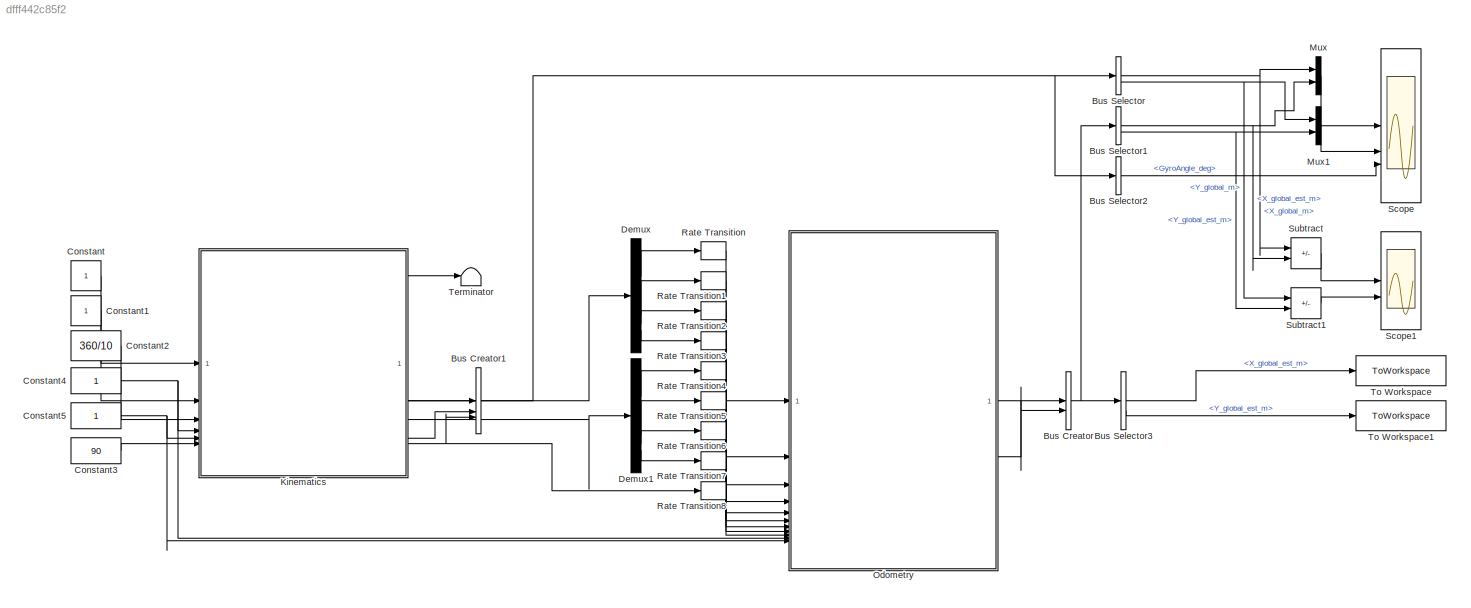
MODEL slx_dfff442c85f2
KIND model
CONFIG AbsTol = auto
CONFIG EnableMultiTasking = off
CONFIG FixedStep = auto
CONFIG MaxStep = 0.01
CONFIG MinStep = auto
CONFIG RelTol = 1e-3
CONFIG SampleTimeConstraint = Unconstrained
CONFIG SolverName = VariableStepAuto
CONFIG StartTime = 0.0
CONFIG StopTime = 10.0
BLOCK [BusCreator] Bus Creator
  DisplayOption = bar
  InheritFromInputs = on
  Inputs = 2
BLOCK [BusCreator] Bus Creator1
  DisplayOption = bar
  InheritFromInputs = on
  Inputs = 3
BLOCK [BusSelector] Bus Selector
  OutputSignals = X_global_m,Y_global_m
BLOCK [BusSelector] Bus Selector1
  OutputSignals = X_global_est_m,Y_global_est_m
BLOCK [BusSelector] Bus Selector2
  OutputSignals = GyroAngle_deg
BLOCK [BusSelector] Bus Selector3
  OutputSignals = X_global_est_m,Y_global_est_m
BLOCK [Constant] Constant
BLOCK [Constant] Constant1
BLOCK [Constant] Constant2
  Value = 360/10
BLOCK [Constant] Constant3
  Value = 90
BLOCK [Constant] Constant4
BLOCK [Constant] Constant5
BLOCK [Demux] Demux
BLOCK [Demux] Demux1
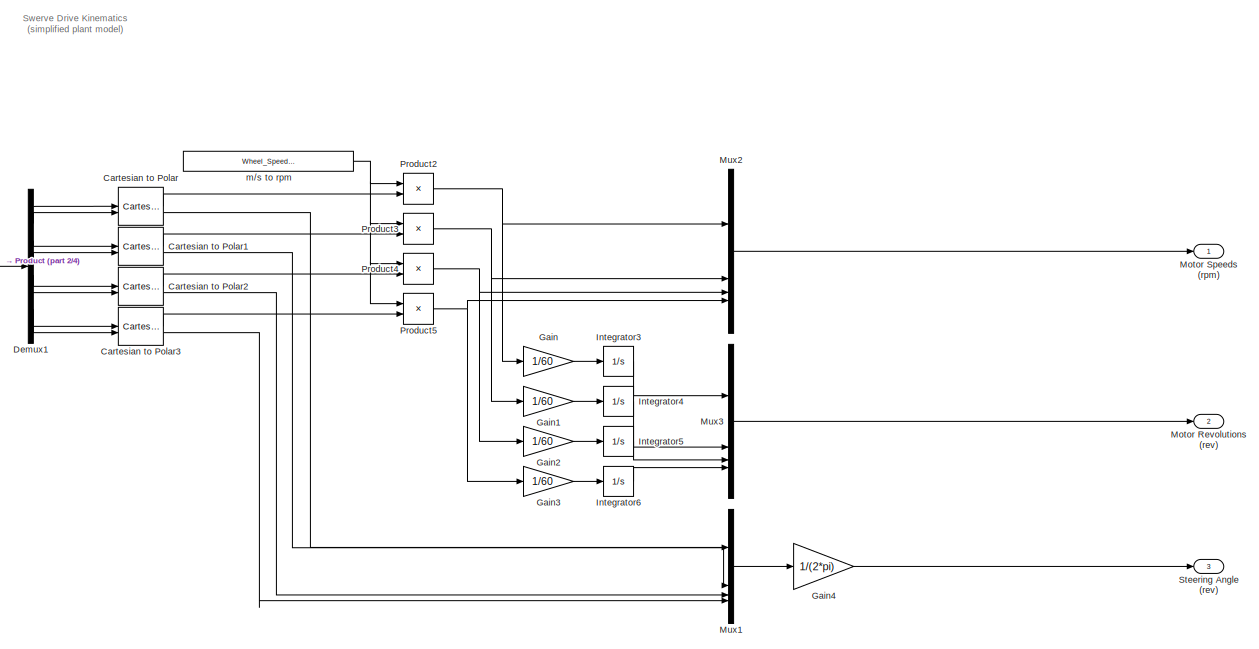
[diagram: Kinematics - part 1/4, top center region]
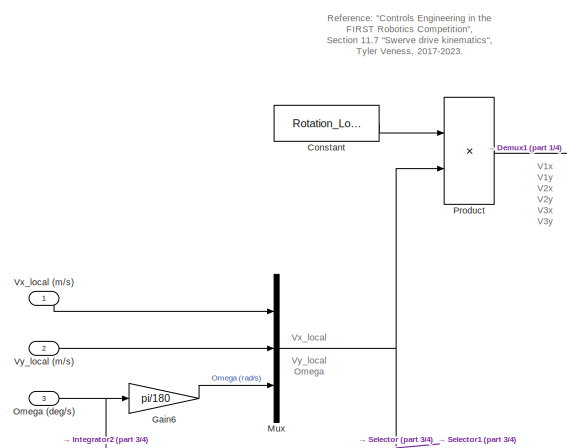
[diagram: Kinematics - part 2/4, top left region]
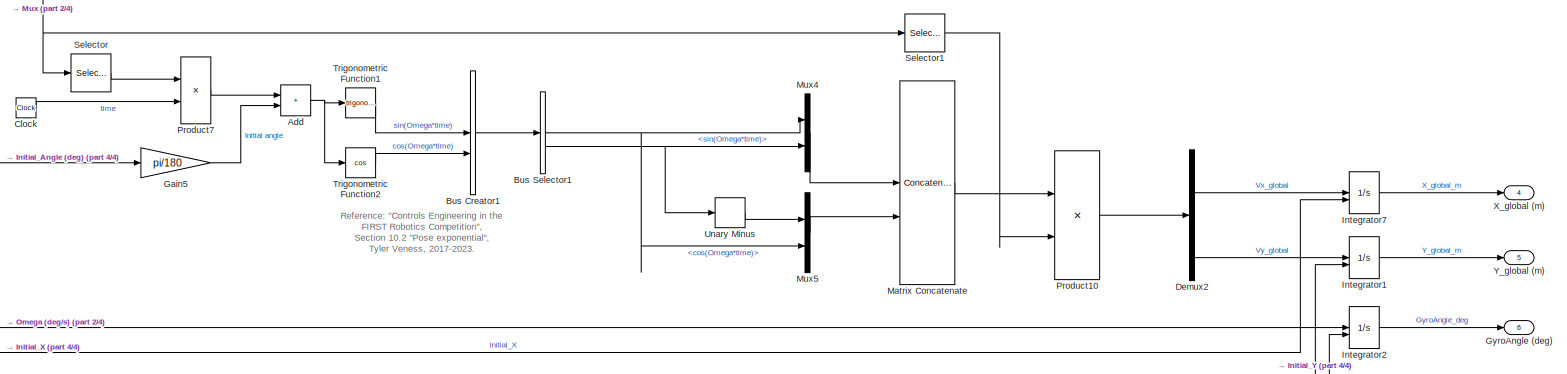
[diagram: Kinematics - part 3/4, full width, bottom band]
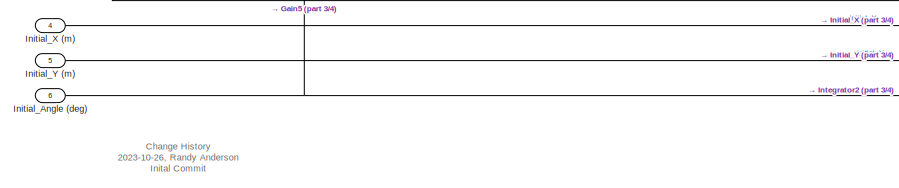
[diagram: Kinematics - part 4/4, bottom left region]
BLOCK [SubSystem] Kinematics
BLOCK [Sum] Kinematics/Add
  IconShape = rectangular
BLOCK [BusCreator] Kinematics/Bus Creator1
  DisplayOption = bar
  InheritFromInputs = on
  Inputs = 2
BLOCK [BusSelector] Kinematics/Bus Selector1
  OutputSignals = cos(Omega*time),sin(Omega*time)
BLOCK [Reference] Kinematics/Cartesian to Polar  REF=simulink_extras/Transformations/Cartesian to
Polar
  SourceBlock = simulink_extras/Transformations/Cartesian to\nPolar
  SourceType = Cart2Polar
BLOCK [Reference] Kinematics/Cartesian to Polar1  REF=simulink_extras/Transformations/Cartesian to
Polar
  SourceBlock = simulink_extras/Transformations/Cartesian to\nPolar
  SourceType = Cart2Polar
BLOCK [Reference] Kinematics/Cartesian to Polar2  REF=simulink_extras/Transformations/Cartesian to
Polar
  SourceBlock = simulink_extras/Transformations/Cartesian to\nPolar
  SourceType = Cart2Polar
BLOCK [Reference] Kinematics/Cartesian to Polar3  REF=simulink_extras/Transformations/Cartesian to
Polar
  SourceBlock = simulink_extras/Transformations/Cartesian to\nPolar
  SourceType = Cart2Polar
BLOCK [Clock] Kinematics/Clock
BLOCK [Constant] Kinematics/Constant
  Value = Rotation_Local
BLOCK [Demux] Kinematics/Demux1
  Outputs = 8
BLOCK [Demux] Kinematics/Demux2
  Outputs = 2
BLOCK [Gain] Kinematics/Gain
  Gain = 1/60
BLOCK [Gain] Kinematics/Gain1
  Gain = 1/60
BLOCK [Gain] Kinematics/Gain2
  Gain = 1/60
BLOCK [Gain] Kinematics/Gain3
  Gain = 1/60
BLOCK [Gain] Kinematics/Gain4
  Gain = 1/(2*pi)
BLOCK [Gain] Kinematics/Gain5
  Gain = pi/180
BLOCK [Gain] Kinematics/Gain6
  Gain = pi/180
BLOCK [Outport] Kinematics/GyroAngle (deg)
  Port = 6
BLOCK [Inport] Kinematics/Initial_Angle (deg)
  Port = 6
BLOCK [Inport] Kinematics/Initial_X (m)
  Port = 4
BLOCK [Inport] Kinematics/Initial_Y (m)
  Port = 5
BLOCK [Integrator] Kinematics/Integrator1
  InitialConditionSource = external
BLOCK [Integrator] Kinematics/Integrator2
  InitialConditionSource = external
BLOCK [Integrator] Kinematics/Integrator3
BLOCK [Integrator] Kinematics/Integrator4
BLOCK [Integrator] Kinematics/Integrator5
BLOCK [Integrator] Kinematics/Integrator6
BLOCK [Integrator] Kinematics/Integrator7
  InitialConditionSource = external
BLOCK [Concatenate] Kinematics/Matrix Concatenate
  ConcatenateDimension = 2
  Mode = Multidimensional array
BLOCK [Outport] Kinematics/Motor Revolutions (rev)
  Port = 2
BLOCK [Outport] Kinematics/Motor Speeds (rpm)
BLOCK [Mux] Kinematics/Mux
  DisplayOption = bar
  Inputs = 3
BLOCK [Mux] Kinematics/Mux1
  DisplayOption = bar
BLOCK [Mux] Kinematics/Mux2
  DisplayOption = bar
BLOCK [Mux] Kinematics/Mux3
  DisplayOption = bar
BLOCK [Mux] Kinematics/Mux4
  DisplayOption = bar
  Inputs = 2
BLOCK [Mux] Kinematics/Mux5
  DisplayOption = bar
  Inputs = 2
BLOCK [Inport] Kinematics/Omega (deg//s)
  Port = 3
BLOCK [Product] Kinematics/Product
  Multiplication = Matrix(*)
BLOCK [Product] Kinematics/Product10
  Multiplication = Matrix(*)
BLOCK [Product] Kinematics/Product2
BLOCK [Product] Kinematics/Product3
BLOCK [Product] Kinematics/Product4
BLOCK [Product] Kinematics/Product5
BLOCK [Product] Kinematics/Product7
BLOCK [Selector] Kinematics/Selector
  IndexOptions = Index vector (dialog)
  Indices = 3
  InputPortWidth = 3
  OutputSizes = 1
BLOCK [Selector] Kinematics/Selector1
  IndexOptions = Index vector (dialog)
  Indices = [1 2]
  InputPortWidth = 3
  OutputSizes = 1
BLOCK [Outport] Kinematics/Steering Angle (rev)
  Port = 3
BLOCK [Trigonometry] Kinematics/Trigonometric Function1
BLOCK [Trigonometry] Kinematics/Trigonometric Function2
  Operator = cos
BLOCK [UnaryMinus] Kinematics/Unary Minus
BLOCK [Inport] Kinematics/Vx_local (m//s)
BLOCK [Inport] Kinematics/Vy_local (m//s)
  Port = 2
BLOCK [Outport] Kinematics/X_global (m)
  Port = 4
BLOCK [Outport] Kinematics/Y_global (m)
  Port = 5
BLOCK [Constant] Kinematics/m//s to rpm
  Value = Wheel_Speed_to_Motor_Speed
BLOCK [Mux] Mux
  DisplayOption = bar
  Inputs = 2
BLOCK [Mux] Mux1
  DisplayOption = bar
  Inputs = 2
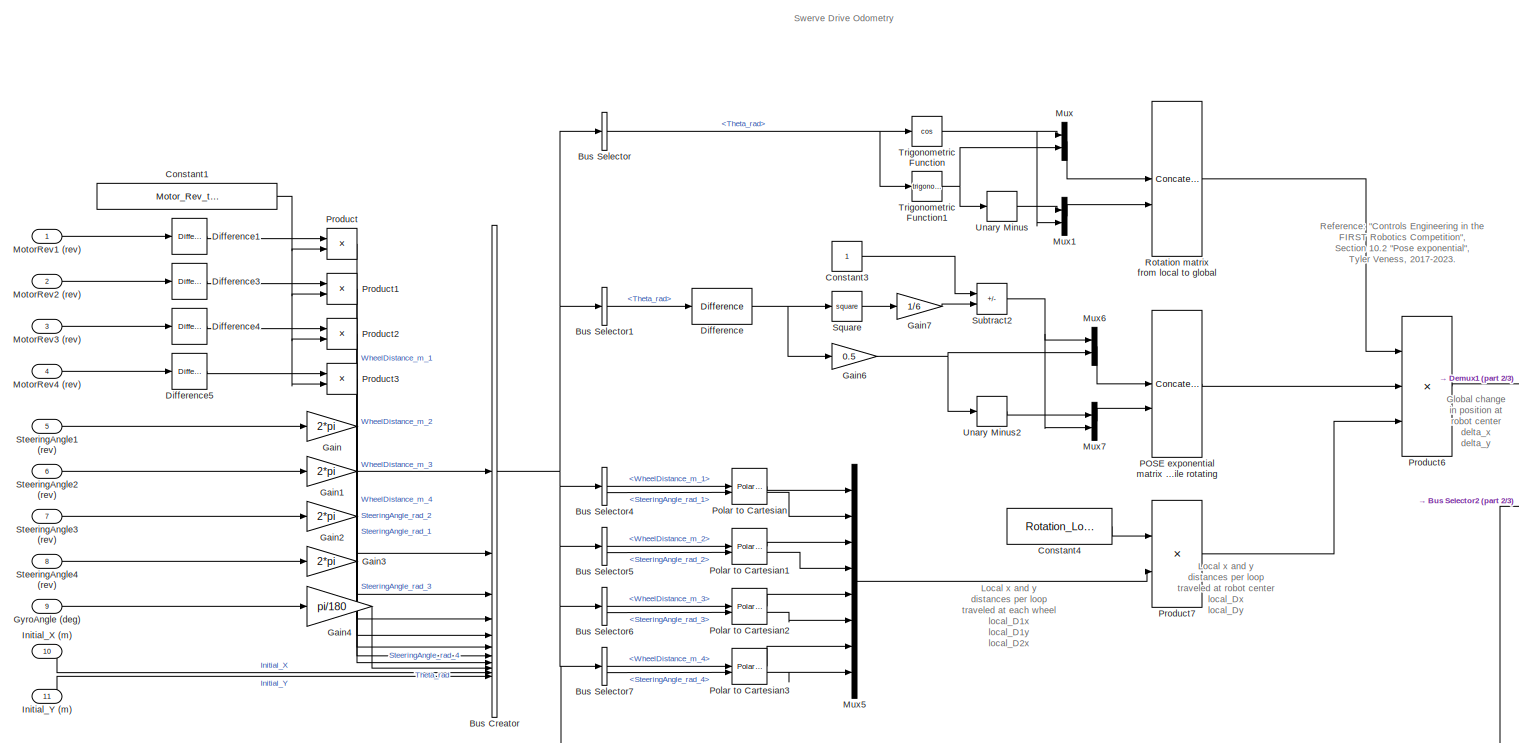
[diagram: Odometry - part 1/3, most of the canvas]
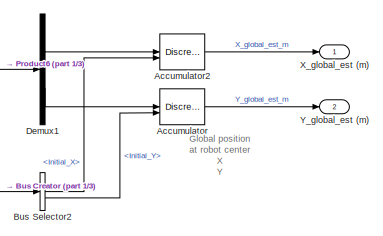
[diagram: Odometry - part 2/3, middle right region]
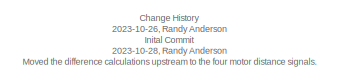
[diagram: Odometry - part 3/3, bottom left region]
BLOCK [SubSystem] Odometry
BLOCK [DiscreteIntegrator] Odometry/Accumulator
  ICPrevOutput = DiscIntNeverNeededParam
  ICPrevScaledInput = DiscIntNeverNeededParam
  InitialConditionSetting = Auto
  InitialConditionSource = external
  IntegratorMethod = Accumulation: Forward Euler
  SampleTime = -1
BLOCK [DiscreteIntegrator] Odometry/Accumulator2
  ICPrevOutput = DiscIntNeverNeededParam
  ICPrevScaledInput = DiscIntNeverNeededParam
  InitialConditionSetting = Auto
  InitialConditionSource = external
  IntegratorMethod = Accumulation: Forward Euler
  SampleTime = -1
BLOCK [BusCreator] Odometry/Bus Creator
  DisplayOption = bar
  InheritFromInputs = on
  Inputs = 11
BLOCK [BusSelector] Odometry/Bus Selector
  OutputSignals = Theta_rad
BLOCK [BusSelector] Odometry/Bus Selector1
  OutputSignals = Theta_rad
BLOCK [BusSelector] Odometry/Bus Selector2
  OutputSignals = Initial_X,Initial_Y
BLOCK [BusSelector] Odometry/Bus Selector4
  OutputSignals = WheelDistance_m_1,SteeringAngle_rad_1
BLOCK [BusSelector] Odometry/Bus Selector5
  OutputSignals = WheelDistance_m_2,SteeringAngle_rad_2
BLOCK [BusSelector] Odometry/Bus Selector6
  OutputSignals = WheelDistance_m_3,SteeringAngle_rad_3
BLOCK [BusSelector] Odometry/Bus Selector7
  OutputSignals = WheelDistance_m_4,SteeringAngle_rad_4
BLOCK [Constant] Odometry/Constant1
  Value = Motor_Rev_to_Wheel_Distance
BLOCK [Constant] Odometry/Constant3
BLOCK [Constant] Odometry/Constant4
  Value = Rotation_Local_Inv
BLOCK [Demux] Odometry/Demux1
  Outputs = 2
BLOCK [Reference] Odometry/Difference  REF=simulink/Discrete/Difference
  SourceBlock = simulink/Discrete/Difference
  SourceType = Difference
BLOCK [Reference] Odometry/Difference1  REF=simulink/Discrete/Difference
  SourceBlock = simulink/Discrete/Difference
  SourceType = Difference
BLOCK [Reference] Odometry/Difference3  REF=simulink/Discrete/Difference
  SourceBlock = simulink/Discrete/Difference
  SourceType = Difference
BLOCK [Reference] Odometry/Difference4  REF=simulink/Discrete/Difference
  SourceBlock = simulink/Discrete/Difference
  SourceType = Difference
BLOCK [Reference] Odometry/Difference5  REF=simulink/Discrete/Difference
  SourceBlock = simulink/Discrete/Difference
  SourceType = Difference
BLOCK [Gain] Odometry/Gain
  Gain = 2*pi
BLOCK [Gain] Odometry/Gain1
  Gain = 2*pi
BLOCK [Gain] Odometry/Gain2
  Gain = 2*pi
BLOCK [Gain] Odometry/Gain3
  Gain = 2*pi
BLOCK [Gain] Odometry/Gain4
  Gain = pi/180
BLOCK [Gain] Odometry/Gain6
  Gain = 0.5
BLOCK [Gain] Odometry/Gain7
  Gain = 1/6
BLOCK [Inport] Odometry/GyroAngle (deg)
  Port = 9
BLOCK [Inport] Odometry/Initial_X (m)
  Port = 10
BLOCK [Inport] Odometry/Initial_Y (m)
  Port = 11
BLOCK [Inport] Odometry/MotorRev1 (rev)
BLOCK [Inport] Odometry/MotorRev2 (rev)
  Port = 2
BLOCK [Inport] Odometry/MotorRev3 (rev)
  Port = 3
BLOCK [Inport] Odometry/MotorRev4 (rev)
  Port = 4
BLOCK [Mux] Odometry/Mux
  DisplayOption = bar
  Inputs = 2
BLOCK [Mux] Odometry/Mux1
  DisplayOption = bar
  Inputs = 2
BLOCK [Mux] Odometry/Mux5
  DisplayOption = bar
  Inputs = 8
BLOCK [Mux] Odometry/Mux6
  DisplayOption = bar
  Inputs = 2
BLOCK [Mux] Odometry/Mux7
  DisplayOption = bar
  Inputs = 2
BLOCK [Concatenate] Odometry/POSE exponential matrix for improved accuracy while rotating
  ConcatenateDimension = 2
  Mode = Multidimensional array
BLOCK [Reference] Odometry/Polar to Cartesian  REF=simulink_extras/Transformations/Polar to
Cartesian
  SourceBlock = simulink_extras/Transformations/Polar to\nCartesian
  SourceType = Polar2Cart
BLOCK [Reference] Odometry/Polar to Cartesian1  REF=simulink_extras/Transformations/Polar to
Cartesian
  SourceBlock = simulink_extras/Transformations/Polar to\nCartesian
  SourceType = Polar2Cart
BLOCK [Reference] Odometry/Polar to Cartesian2  REF=simulink_extras/Transformations/Polar to
Cartesian
  SourceBlock = simulink_extras/Transformations/Polar to\nCartesian
  SourceType = Polar2Cart
BLOCK [Reference] Odometry/Polar to Cartesian3  REF=simulink_extras/Transformations/Polar to
Cartesian
  SourceBlock = simulink_extras/Transformations/Polar to\nCartesian
  SourceType = Polar2Cart
BLOCK [Product] Odometry/Product
BLOCK [Product] Odometry/Product1
BLOCK [Product] Odometry/Product2
BLOCK [Product] Odometry/Product3
BLOCK [Product] Odometry/Product6
  Inputs = 3
  Multiplication = Matrix(*)
BLOCK [Product] Odometry/Product7
  Multiplication = Matrix(*)
BLOCK [Concatenate] Odometry/Rotation matrix from local to global
  ConcatenateDimension = 2
  Mode = Multidimensional array
BLOCK [Math] Odometry/Square
  Operator = square
BLOCK [Inport] Odometry/SteeringAngle1 (rev)
  Port = 5
BLOCK [Inport] Odometry/SteeringAngle2 (rev)
  Port = 6
BLOCK [Inport] Odometry/SteeringAngle3 (rev)
  Port = 7
BLOCK [Inport] Odometry/SteeringAngle4 (rev)
  Port = 8
BLOCK [Sum] Odometry/Subtract2
  IconShape = rectangular
  Inputs = +-
BLOCK [Trigonometry] Odometry/Trigonometric Function
  Operator = cos
BLOCK [Trigonometry] Odometry/Trigonometric Function1
BLOCK [UnaryMinus] Odometry/Unary Minus
BLOCK [UnaryMinus] Odometry/Unary Minus2
BLOCK [Outport] Odometry/X_global_est (m)
BLOCK [Outport] Odometry/Y_global_est (m)
  Port = 2
BLOCK [RateTransition] Rate Transition
  OutPortSampleTime = t_sample
BLOCK [RateTransition] Rate Transition1
  OutPortSampleTime = t_sample
BLOCK [RateTransition] Rate Transition2
  OutPortSampleTime = t_sample
BLOCK [RateTransition] Rate Transition3
  OutPortSampleTime = t_sample
BLOCK [RateTransition] Rate Transition4
  OutPortSampleTime = t_sample
BLOCK [RateTransition] Rate Transition5
  OutPortSampleTime = t_sample
BLOCK [RateTransition] Rate Transition6
  OutPortSampleTime = t_sample
BLOCK [RateTransition] Rate Transition7
  OutPortSampleTime = t_sample
BLOCK [RateTransition] Rate Transition8
  OutPortSampleTime = t_sample
BLOCK [Scope] Scope
  Floating = off
  NumInputPorts = 3
  ScopeSpecificationString = Simulink.scopes.TimeScopeBlockCfg('CurrentConfiguration', extmgr.ConfigurationSet(extmgr.Configuration('Core','General UI',true),extmgr.Configuration('Core','Source UI',true),extmgr.Configuration('Sources','WiredSimulink',true),extmgr.Configuration('Visuals','Time Domain',true,'SerializedDisplays',{struct('MinYLimReal','-3.40755','MaxYLimReal','2.24453','YLabelReal','','MinYLimMag','0.00000','MaxY...<+2731ch>
BLOCK [Scope] Scope1
  Floating = off
  NumInputPorts = 2
  ScopeSpecificationString = Simulink.scopes.TimeScopeBlockCfg('CurrentConfiguration', extmgr.ConfigurationSet(extmgr.Configuration('Core','General UI',true),extmgr.Configuration('Core','Source UI',true),extmgr.Configuration('Sources','WiredSimulink',true,'DataLoggingVariableName','ScopeData1'),extmgr.Configuration('Visuals','Time Domain',true,'SerializedDisplays',{struct('MinYLimReal','-0.03855','MaxYLimReal','0.00428','YLab...<+2012ch>
BLOCK [Sum] Subtract
  IconShape = rectangular
  Inputs = +-
BLOCK [Sum] Subtract1
  IconShape = rectangular
  Inputs = +-
BLOCK [Terminator] Terminator
BLOCK [ToWorkspace] To Workspace
  FixptAsFi = on
  MaxDataPoints = inf
  SampleTime = -1
  VariableName = X
BLOCK [ToWorkspace] To Workspace1
  FixptAsFi = on
  MaxDataPoints = inf
  SampleTime = -1
  VariableName = Y
ANNOTATION Kinematics: Swerve Drive Kinematics (simplified plant model)
ANNOTATION Kinematics: Change History 2023-10-26, Randy Anderson Inital Commit
ANNOTATION Kinematics: Reference: "Controls Engineering in the FIRST Robotics Competition", Section 10.2 "Pose exponential", Tyler Veness, 2017-2023.
ANNOTATION Kinematics: Reference: "Controls Engineering in the FIRST Robotics Competition", Section 11.7 "Swerve drive kinematics", Tyler Veness, 2017-2023.
ANNOTATION Kinematics: V1x V1y V2x V2y V3x V3y V4x V4y
ANNOTATION Kinematics: Vx_local Vy_local Omega
ANNOTATION Odometry: Swerve Drive Odometry
ANNOTATION Odometry: Change History 2023-10-26, Randy Anderson Inital Commit 2023-10-28, Randy Anderson Moved the difference calculations upstream to the four motor distance signals.
ANNOTATION Odometry: Global change in position at robot center delta_x delta_y
ANNOTATION Odometry: Global position at robot center X Y
ANNOTATION Odometry: Local x and y distances per loop traveled at each wheel local_D1x local_D1y local_D2x local_D2y local_D3x local_D3y local_D4x local_D4y
ANNOTATION Odometry: Local x and y distances per loop traveled at robot center local_Dx local_Dy
ANNOTATION Odometry: Reference: "Controls Engineering in the FIRST Robotics Competition", Section 10.2 "Pose exponential", Tyler Veness, 2017-2023.
NET Bus Creator1:1 -> Bus Selector2:1, Bus Selector:1
NET Bus Creator:1 -> Bus Selector1:1, Bus Selector3:1
NET Bus Selector1:1 -> Mux:2, Subtract:2
NET Bus Selector1:2 -> Mux1:2, Subtract1:2
LINE Bus Selector2:1 -> Scope:3
LINE Bus Selector3:1 -> To Workspace:1
LINE Bus Selector3:2 -> To Workspace1:1
NET Bus Selector:1 -> Mux:1, Subtract:1
NET Bus Selector:2 -> Mux1:1, Subtract1:1
LINE Constant1:1 -> Kinematics:2
LINE Constant2:1 -> Kinematics:3
LINE Constant3:1 -> Kinematics:6
NET Constant4:1 -> Kinematics:4, Odometry:10
NET Constant5:1 -> Kinematics:5, Odometry:11
LINE Constant:1 -> Kinematics:1
LINE Demux1:1 -> Rate Transition4:1
LINE Demux1:2 -> Rate Transition5:1
LINE Demux1:3 -> Rate Transition6:1
LINE Demux1:4 -> Rate Transition7:1
LINE Demux:1 -> Rate Transition:1
LINE Demux:2 -> Rate Transition1:1
LINE Demux:3 -> Rate Transition2:1
LINE Demux:4 -> Rate Transition3:1
NET Kinematics/Add:1 -> Kinematics/Trigonometric Function1:1, Kinematics/Trigonometric Function2:1
LINE Kinematics/Bus Creator1:1 -> Kinematics/Bus Selector1:1
NET Kinematics/Bus Selector1:1 -> Kinematics/Mux4:1, Kinematics/Mux5:2
NET Kinematics/Bus Selector1:2 -> Kinematics/Mux4:2, Kinematics/Unary Minus:1
LINE Kinematics/Cartesian to Polar1:1 -> Kinematics/Product3:2
LINE Kinematics/Cartesian to Polar1:2 -> Kinematics/Mux1:2
LINE Kinematics/Cartesian to Polar2:1 -> Kinematics/Product4:2
LINE Kinematics/Cartesian to Polar2:2 -> Kinematics/Mux1:3
LINE Kinematics/Cartesian to Polar3:1 -> Kinematics/Product5:2
LINE Kinematics/Cartesian to Polar3:2 -> Kinematics/Mux1:4
LINE Kinematics/Cartesian to Polar:1 -> Kinematics/Product2:2
LINE Kinematics/Cartesian to Polar:2 -> Kinematics/Mux1:1
LINE Kinematics/Clock:1 -> Kinematics/Product7:2
LINE Kinematics/Constant:1 -> Kinematics/Product:1
LINE Kinematics/Demux1:1 -> Kinematics/Cartesian to Polar:1
LINE Kinematics/Demux1:2 -> Kinematics/Cartesian to Polar:2
LINE Kinematics/Demux1:3 -> Kinematics/Cartesian to Polar1:1
LINE Kinematics/Demux1:4 -> Kinematics/Cartesian to Polar1:2
LINE Kinematics/Demux1:5 -> Kinematics/Cartesian to Polar2:1
LINE Kinematics/Demux1:6 -> Kinematics/Cartesian to Polar2:2
LINE Kinematics/Demux1:7 -> Kinematics/Cartesian to Polar3:1
LINE Kinematics/Demux1:8 -> Kinematics/Cartesian to Polar3:2
LINE Kinematics/Demux2:1 -> Kinematics/Integrator7:1
LINE Kinematics/Demux2:2 -> Kinematics/Integrator1:1
LINE Kinematics/Gain1:1 -> Kinematics/Integrator4:1
LINE Kinematics/Gain2:1 -> Kinematics/Integrator5:1
LINE Kinematics/Gain3:1 -> Kinematics/Integrator6:1
LINE Kinematics/Gain4:1 -> Kinematics/Steering Angle (rev):1
LINE Kinematics/Gain5:1 -> Kinematics/Add:2
LINE Kinematics/Gain6:1 -> Kinematics/Mux:3
LINE Kinematics/Gain:1 -> Kinematics/Integrator3:1
NET Kinematics/Initial_Angle (deg):1 -> Kinematics/Gain5:1, Kinematics/Integrator2:2
LINE Kinematics/Initial_X (m):1 -> Kinematics/Integrator7:2
LINE Kinematics/Initial_Y (m):1 -> Kinematics/Integrator1:2
LINE Kinematics/Integrator1:1 -> Kinematics/Y_global (m):1
LINE Kinematics/Integrator2:1 -> Kinematics/GyroAngle (deg):1
LINE Kinematics/Integrator3:1 -> Kinematics/Mux3:1
LINE Kinematics/Integrator4:1 -> Kinematics/Mux3:2
LINE Kinematics/Integrator5:1 -> Kinematics/Mux3:3
LINE Kinematics/Integrator6:1 -> Kinematics/Mux3:4
LINE Kinematics/Integrator7:1 -> Kinematics/X_global (m):1
LINE Kinematics/Matrix Concatenate:1 -> Kinematics/Product10:1
LINE Kinematics/Mux1:1 -> Kinematics/Gain4:1
LINE Kinematics/Mux2:1 -> Kinematics/Motor Speeds (rpm):1
LINE Kinematics/Mux3:1 -> Kinematics/Motor Revolutions (rev):1
LINE Kinematics/Mux4:1 -> Kinematics/Matrix Concatenate:1
LINE Kinematics/Mux5:1 -> Kinematics/Matrix Concatenate:2
NET Kinematics/Mux:1 -> Kinematics/Product:2, Kinematics/Selector1:1, Kinematics/Selector:1
NET Kinematics/Omega (deg//s):1 -> Kinematics/Gain6:1, Kinematics/Integrator2:1
LINE Kinematics/Product10:1 -> Kinematics/Demux2:1
NET Kinematics/Product2:1 -> Kinematics/Gain:1, Kinematics/Mux2:1
NET Kinematics/Product3:1 -> Kinematics/Gain1:1, Kinematics/Mux2:2
NET Kinematics/Product4:1 -> Kinematics/Gain2:1, Kinematics/Mux2:3
NET Kinematics/Product5:1 -> Kinematics/Gain3:1, Kinematics/Mux2:4
LINE Kinematics/Product7:1 -> Kinematics/Add:1
LINE Kinematics/Product:1 -> Kinematics/Demux1:1
LINE Kinematics/Selector1:1 -> Kinematics/Product10:2
LINE Kinematics/Selector:1 -> Kinematics/Product7:1
LINE Kinematics/Trigonometric Function1:1 -> Kinematics/Bus Creator1:1
LINE Kinematics/Trigonometric Function2:1 -> Kinematics/Bus Creator1:2
LINE Kinematics/Unary Minus:1 -> Kinematics/Mux5:1
LINE Kinematics/Vx_local (m//s):1 -> Kinematics/Mux:1
LINE Kinematics/Vy_local (m//s):1 -> Kinematics/Mux:2
NET Kinematics/m//s to rpm:1 -> Kinematics/Product2:1, Kinematics/Product3:1, Kinematics/Product4:1, Kinematics/Product5:1
LINE Kinematics:1 -> Terminator:1
LINE Kinematics:2 -> Demux:1
LINE Kinematics:3 -> Demux1:1
LINE Kinematics:4 -> Bus Creator1:1
LINE Kinematics:5 -> Bus Creator1:2
NET Kinematics:6 -> Bus Creator1:3, Rate Transition8:1
LINE Mux1:1 -> Scope:2
LINE Mux:1 -> Scope:1
LINE Odometry/Accumulator2:1 -> Odometry/X_global_est (m):1
LINE Odometry/Accumulator:1 -> Odometry/Y_global_est (m):1
NET Odometry/Bus Creator:1 -> Odometry/Bus Selector1:1, Odometry/Bus Selector2:1, Odometry/Bus Selector4:1, Odometry/Bus Selector5:1, Odometry/Bus Selector6:1, Odometry/Bus Selector7:1, Odometry/Bus Selector:1
LINE Odometry/Bus Selector1:1 -> Odometry/Difference:1
LINE Odometry/Bus Selector2:1 -> Odometry/Accumulator2:2
LINE Odometry/Bus Selector2:2 -> Odometry/Accumulator:2
LINE Odometry/Bus Selector4:1 -> Odometry/Polar to Cartesian:1
LINE Odometry/Bus Selector4:2 -> Odometry/Polar to Cartesian:2
LINE Odometry/Bus Selector5:1 -> Odometry/Polar to Cartesian1:1
LINE Odometry/Bus Selector5:2 -> Odometry/Polar to Cartesian1:2
LINE Odometry/Bus Selector6:1 -> Odometry/Polar to Cartesian2:1
LINE Odometry/Bus Selector6:2 -> Odometry/Polar to Cartesian2:2
LINE Odometry/Bus Selector7:1 -> Odometry/Polar to Cartesian3:1
LINE Odometry/Bus Selector7:2 -> Odometry/Polar to Cartesian3:2
NET Odometry/Bus Selector:1 -> Odometry/Trigonometric Function1:1, Odometry/Trigonometric Function:1
NET Odometry/Constant1:1 -> Odometry/Product1:2, Odometry/Product2:2, Odometry/Product3:2, Odometry/Product:2
LINE Odometry/Constant3:1 -> Odometry/Subtract2:1
LINE Odometry/Constant4:1 -> Odometry/Product7:1
LINE Odometry/Demux1:1 -> Odometry/Accumulator2:1
LINE Odometry/Demux1:2 -> Odometry/Accumulator:1
LINE Odometry/Difference1:1 -> Odometry/Product:1
LINE Odometry/Difference3:1 -> Odometry/Product1:1
LINE Odometry/Difference4:1 -> Odometry/Product2:1
LINE Odometry/Difference5:1 -> Odometry/Product3:1
NET Odometry/Difference:1 -> Odometry/Gain6:1, Odometry/Square:1
LINE Odometry/Gain1:1 -> Odometry/Bus Creator:6
LINE Odometry/Gain2:1 -> Odometry/Bus Creator:7
LINE Odometry/Gain3:1 -> Odometry/Bus Creator:8
LINE Odometry/Gain4:1 -> Odometry/Bus Creator:9
NET Odometry/Gain6:1 -> Odometry/Mux6:2, Odometry/Unary Minus2:1
LINE Odometry/Gain7:1 -> Odometry/Subtract2:2
LINE Odometry/Gain:1 -> Odometry/Bus Creator:5
LINE Odometry/GyroAngle (deg):1 -> Odometry/Gain4:1
LINE Odometry/Initial_X (m):1 -> Odometry/Bus Creator:10
LINE Odometry/Initial_Y (m):1 -> Odometry/Bus Creator:11
LINE Odometry/MotorRev1 (rev):1 -> Odometry/Difference1:1
LINE Odometry/MotorRev2 (rev):1 -> Odometry/Difference3:1
LINE Odometry/MotorRev3 (rev):1 -> Odometry/Difference4:1
LINE Odometry/MotorRev4 (rev):1 -> Odometry/Difference5:1
LINE Odometry/Mux1:1 -> Odometry/Rotation matrix from local to global:2
LINE Odometry/Mux5:1 -> Odometry/Product7:2
LINE Odometry/Mux6:1 -> Odometry/POSE exponential matrix for improved accuracy while rotating:1
LINE Odometry/Mux7:1 -> Odometry/POSE exponential matrix for improved accuracy while rotating:2
LINE Odometry/Mux:1 -> Odometry/Rotation matrix from local to global:1
LINE Odometry/POSE exponential matrix for improved accuracy while rotating:1 -> Odometry/Product6:2
LINE Odometry/Polar to Cartesian1:1 -> Odometry/Mux5:3
LINE Odometry/Polar to Cartesian1:2 -> Odometry/Mux5:4
LINE Odometry/Polar to Cartesian2:1 -> Odometry/Mux5:5
LINE Odometry/Polar to Cartesian2:2 -> Odometry/Mux5:6
LINE Odometry/Polar to Cartesian3:1 -> Odometry/Mux5:7
LINE Odometry/Polar to Cartesian3:2 -> Odometry/Mux5:8
LINE Odometry/Polar to Cartesian:1 -> Odometry/Mux5:1
LINE Odometry/Polar to Cartesian:2 -> Odometry/Mux5:2
LINE Odometry/Product1:1 -> Odometry/Bus Creator:2
LINE Odometry/Product2:1 -> Odometry/Bus Creator:3
LINE Odometry/Product3:1 -> Odometry/Bus Creator:4
LINE Odometry/Product6:1 -> Odometry/Demux1:1
LINE Odometry/Product7:1 -> Odometry/Product6:3
LINE Odometry/Product:1 -> Odometry/Bus Creator:1
LINE Odometry/Rotation matrix from local to global:1 -> Odometry/Product6:1
LINE Odometry/Square:1 -> Odometry/Gain7:1
LINE Odometry/SteeringAngle1 (rev):1 -> Odometry/Gain:1
LINE Odometry/SteeringAngle2 (rev):1 -> Odometry/Gain1:1
LINE Odometry/SteeringAngle3 (rev):1 -> Odometry/Gain2:1
LINE Odometry/SteeringAngle4 (rev):1 -> Odometry/Gain3:1
NET Odometry/Subtract2:1 -> Odometry/Mux6:1, Odometry/Mux7:2
NET Odometry/Trigonometric Function1:1 -> Odometry/Mux:2, Odometry/Unary Minus:1
NET Odometry/Trigonometric Function:1 -> Odometry/Mux1:2, Odometry/Mux:1
LINE Odometry/Unary Minus2:1 -> Odometry/Mux7:1
LINE Odometry/Unary Minus:1 -> Odometry/Mux1:1
LINE Odometry:1 -> Bus Creator:1
LINE Odometry:2 -> Bus Creator:2
LINE Rate Transition1:1 -> Odometry:2
LINE Rate Transition2:1 -> Odometry:3
LINE Rate Transition3:1 -> Odometry:4
LINE Rate Transition4:1 -> Odometry:5
LINE Rate Transition5:1 -> Odometry:6
LINE Rate Transition6:1 -> Odometry:7
LINE Rate Transition7:1 -> Odometry:8
LINE Rate Transition8:1 -> Odometry:9
LINE Rate Transition:1 -> Odometry:1
LINE Subtract1:1 -> Scope1:2
LINE Subtract:1 -> Scope1:1
note: NET lines group one-source signal fan-out (src -> all destinations, sorted); 1:1 wires keep LINE
